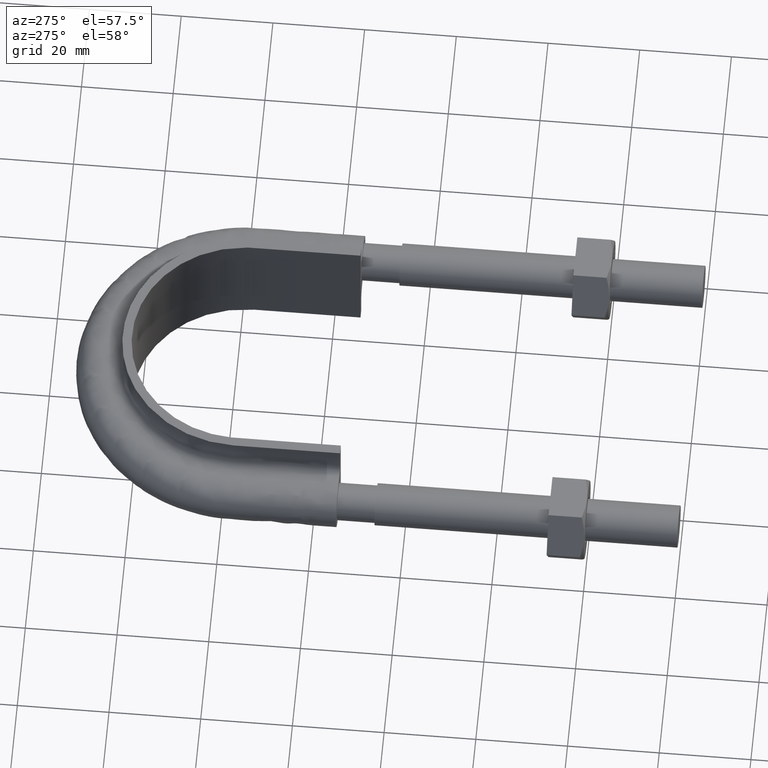
[diagram: clean part render]
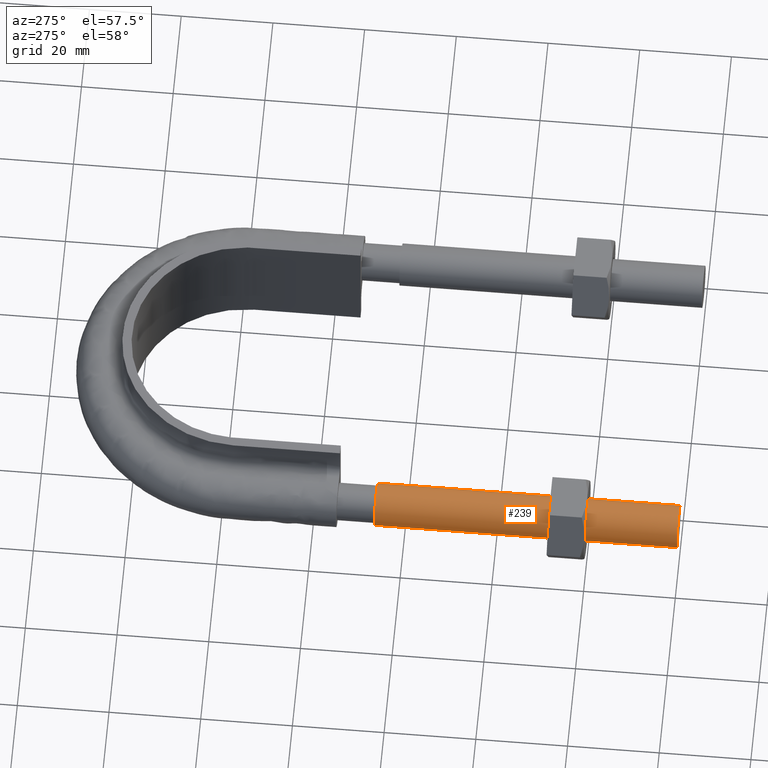
[diagram: same view with one face highlighted and labeled with its STEP entity id]
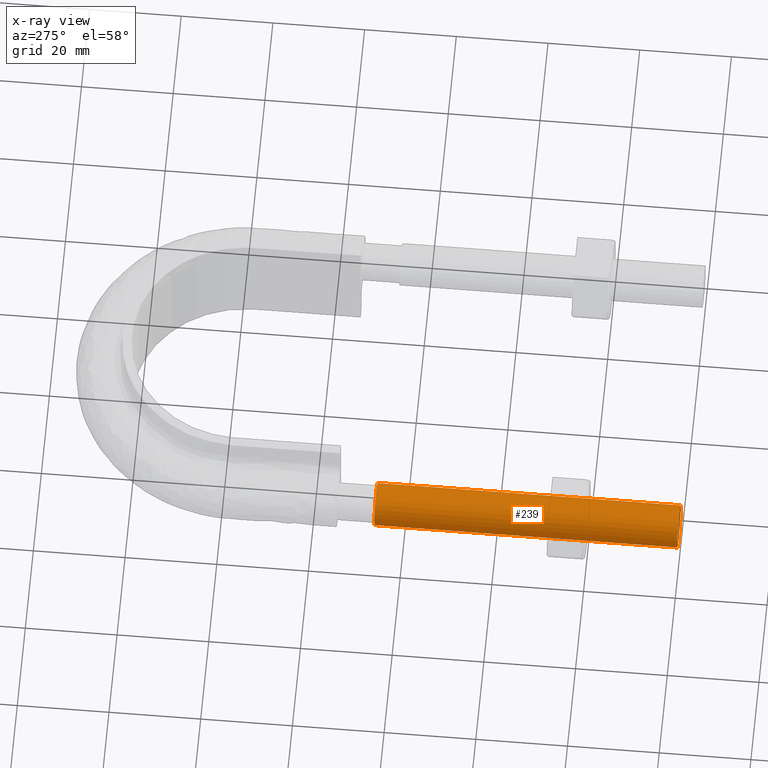
[diagram: x-ray of the same camera — body ghosted, the highlighted face saturated]
A machine part, auxiliary view. The second image highlights one B-rep face of the part: STEP entity #239.
The next image is the same camera in x-ray: the body ghosted, the highlighted face saturated — about 0% of this face is hidden behind the body in this view.
In plain terms, the highlighted cylindrical surface (bore or boss wall) has radius 4.6 mm, axis along (-0, -1, -0).
Its self-contained STEP definition (entity closure, byte-faithful):
#239 = ADVANCED_FACE( '', ( #344, #345 ), #346, .T. );
#344 = FACE_OUTER_BOUND( '', #1341, .T. );
#345 = FACE_OUTER_BOUND( '', #1342, .T. );
#346 = CYLINDRICAL_SURFACE( '', #1343, 4.60000000000000 );
#1341 = EDGE_LOOP( '', ( #1608 ) );
#1342 = EDGE_LOOP( '', ( #1609 ) );
#1343 = AXIS2_PLACEMENT_3D( '', #1610, #1611, #1612 );
#1608 = ORIENTED_EDGE( '', *, *, #2047, .F. );
#1609 = ORIENTED_EDGE( '', *, *, #2050, .T. );
#1610 = CARTESIAN_POINT( '', ( -31.0000000000000, 66.0000000000000, 2.04050033705654E-014 ) );
#1611 = DIRECTION( '', ( -2.44921270764475E-016, -1.00000000000000, -3.06151588455594E-016 ) );
#1612 = DIRECTION( '', ( 1.00000000000000, -2.44921270764475E-016, -3.74915180455534E-032 ) );
#2047 = EDGE_CURVE( '', #2225, #2225, #2226, .T. );
#2050 = EDGE_CURVE( '', #2231, #2231, #2232, .T. );
#2225 = VERTEX_POINT( '', #2715 );
#2226 = CIRCLE( '', #2716, 4.60000000000000 );
#2231 = VERTEX_POINT( '', #2721 );
#2232 = CIRCLE( '', #2722, 4.60000000000000 );
#2715 = CARTESIAN_POINT( '', ( -26.4000000000000, 6.46592154818215E-015, 1.98998532496137E-016 ) );
#2716 = AXIS2_PLACEMENT_3D( '', #3105, #3106, #3107 );
#2721 = CARTESIAN_POINT( '', ( -26.4000000000000, 66.0000000000000, 2.04050033705654E-014 ) );
#2722 = AXIS2_PLACEMENT_3D( '', #3114, #3115, #3116 );
#3105 = CARTESIAN_POINT( '', ( -31.0000000000000, 7.59255939369874E-015, 1.98998532496137E-016 ) );
#3106 = DIRECTION( '', ( -2.44921270764475E-016, -1.00000000000000, -3.06151588455594E-016 ) );
#3107 = DIRECTION( '', ( 1.00000000000000, -2.44921270764475E-016, -3.74915180455534E-032 ) );
#3114 = CARTESIAN_POINT( '', ( -31.0000000000000, 66.0000000000000, 2.04050033705654E-014 ) );
#3115 = DIRECTION( '', ( -2.44921270764475E-016, -1.00000000000000, -3.06151588455594E-016 ) );
#3116 = DIRECTION( '', ( 1.00000000000000, -2.44921270764475E-016, -3.74915180455534E-032 ) );